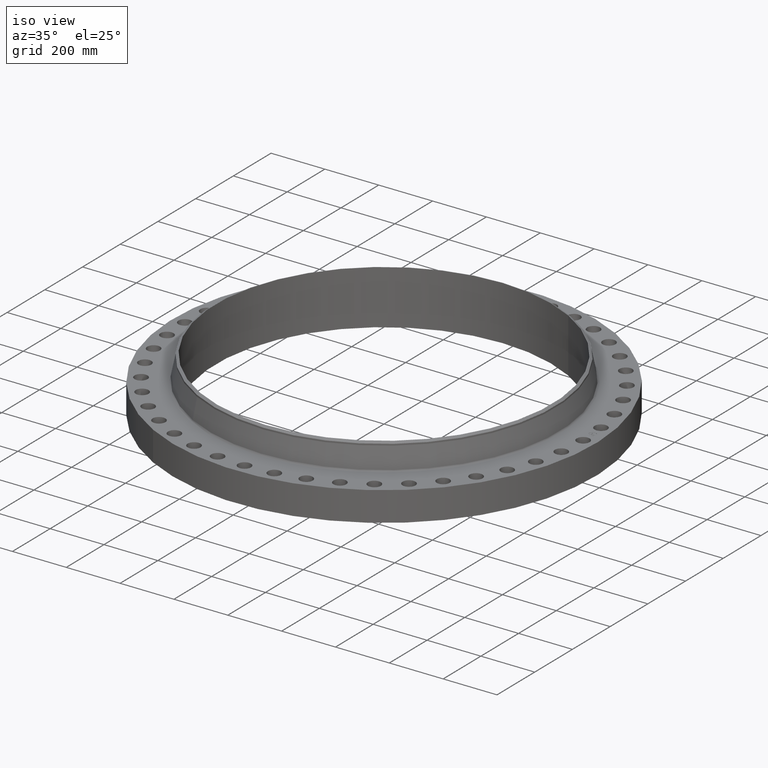
[diagram: clean part render]
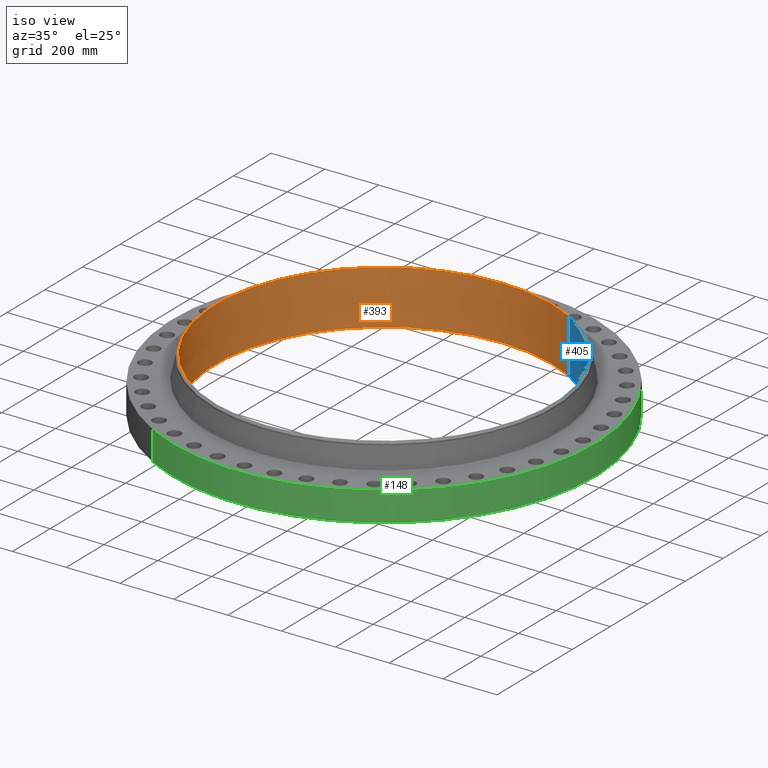
[diagram: same view with three faces highlighted in distinct colors, each labeled with its STEP entity id]
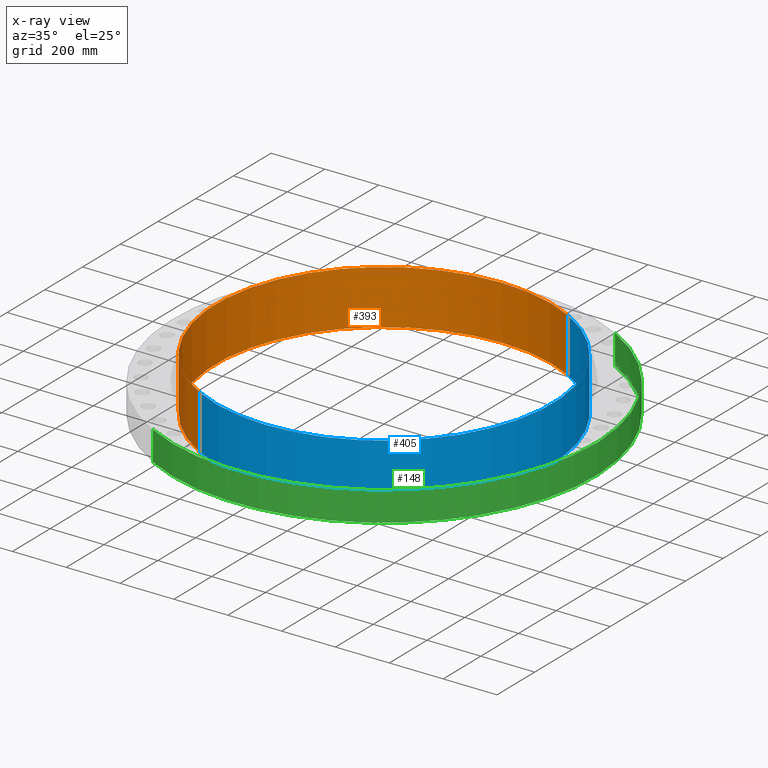
[diagram: x-ray of the same camera — body ghosted, the three highlighted faces saturated]
A machine part, iso view with three faces highlighted in distinct colors.
The next image is the same camera in x-ray (body ghosted, the three faces saturated) — at least one of them is partly hidden behind the body in this view.
Their STEP definitions:

[orange] entity #393 — the highlighted cylindrical surface (partial cylindrical patch) has radius 625.475 mm, axis along (0, 0, -1).
#346=AXIS2_PLACEMENT_3D('Circle Axis2P3D',#344,#345,$) ;
#366=AXIS2_PLACEMENT_3D('Cylinder Axis2P3D',#363,#364,#365) ;
#377=AXIS2_PLACEMENT_3D('Circle Axis2P3D',#375,#376,$) ;
#344=CARTESIAN_POINT('Axis2P3D Location',(-4.47585975282E-015,-2.79741234551E-015,7.94000000003)) ;
#348=CARTESIAN_POINT('Vertex',(-11.8058538882,-21.6104705866,7.94000000003)) ;
#350=CARTESIAN_POINT('Vertex',(11.8058538882,21.6104705866,7.94000000003)) ;
#363=CARTESIAN_POINT('Axis2P3D Location',(0.,0.,4.02000000002)) ;
#368=CARTESIAN_POINT('Line Origine',(-11.8058538882,-21.6104705866,3.97000000002)) ;
#372=CARTESIAN_POINT('Vertex',(-11.8058538882,-21.6104705866,-7.49706508597E-014)) ;
#375=CARTESIAN_POINT('Axis2P3D Location',(0.,0.,-7.49706508597E-014)) ;
#379=CARTESIAN_POINT('Vertex',(11.8058538882,21.6104705866,-7.49706508597E-014)) ;
#382=CARTESIAN_POINT('Line Origine',(11.8058538882,21.6104705866,3.97000000002)) ;
#345=DIRECTION('Axis2P3D Direction',(0.,-0.,-0.0393700787402)) ;
#364=DIRECTION('Axis2P3D Direction',(0.,0.,-0.0393700787402)) ;
#365=DIRECTION('Axis2P3D XDirection',(0.0188750212049,0.0345504945626,0.)) ;
#369=DIRECTION('Vector Direction',(0.,0.,-0.0393700787402)) ;
#376=DIRECTION('Axis2P3D Direction',(0.,0.,-0.0393700787402)) ;
#383=DIRECTION('Vector Direction',(0.,0.,-0.0393700787402)) ;
#370=VECTOR('Line Direction',#369,0.0393700787402) ;
#384=VECTOR('Line Direction',#383,0.0393700787402) ;
#388=ORIENTED_EDGE('',*,*,#374,.T.) ;
#389=ORIENTED_EDGE('',*,*,#381,.T.) ;
#390=ORIENTED_EDGE('',*,*,#386,.F.) ;
#391=ORIENTED_EDGE('',*,*,#352,.F.) ;
#393=ADVANCED_FACE('PartBody',(#392),#367,.F.) ;
#347=CIRCLE('generated circle',#346,24.6250000001) ;
#378=CIRCLE('generated circle',#377,24.6250000001) ;
#367=CYLINDRICAL_SURFACE('generated cylinder',#366,24.6250000001) ;
#352=EDGE_CURVE('',#349,#351,#347,.T.) ;
#374=EDGE_CURVE('',#349,#373,#371,.T.) ;
#381=EDGE_CURVE('',#373,#380,#378,.T.) ;
#386=EDGE_CURVE('',#351,#380,#385,.T.) ;
#387=EDGE_LOOP('',(#388,#389,#390,#391)) ;
#392=FACE_OUTER_BOUND('',#387,.T.) ;
#371=LINE('Line',#368,#370) ;
#385=LINE('Line',#382,#384) ;
#349=VERTEX_POINT('',#348) ;
#351=VERTEX_POINT('',#350) ;
#373=VERTEX_POINT('',#372) ;
#380=VERTEX_POINT('',#379) ;

[blue] entity #405 — the highlighted cylindrical surface (partial cylindrical patch) has radius 625.475 mm, axis along (0, 0, -1).
#355=AXIS2_PLACEMENT_3D('Circle Axis2P3D',#353,#354,$) ;
#366=AXIS2_PLACEMENT_3D('Cylinder Axis2P3D',#363,#364,#365) ;
#396=AXIS2_PLACEMENT_3D('Circle Axis2P3D',#394,#395,$) ;
#348=CARTESIAN_POINT('Vertex',(-11.8058538882,-21.6104705866,7.94000000003)) ;
#350=CARTESIAN_POINT('Vertex',(11.8058538882,21.6104705866,7.94000000003)) ;
#353=CARTESIAN_POINT('Axis2P3D Location',(1.1189649382E-014,5.59482469102E-016,7.94000000003)) ;
#363=CARTESIAN_POINT('Axis2P3D Location',(0.,0.,4.02000000002)) ;
#368=CARTESIAN_POINT('Line Origine',(-11.8058538882,-21.6104705866,3.97000000002)) ;
#372=CARTESIAN_POINT('Vertex',(-11.8058538882,-21.6104705866,-7.49706508597E-014)) ;
#379=CARTESIAN_POINT('Vertex',(11.8058538882,21.6104705866,-7.49706508597E-014)) ;
#382=CARTESIAN_POINT('Line Origine',(11.8058538882,21.6104705866,3.97000000002)) ;
#394=CARTESIAN_POINT('Axis2P3D Location',(0.,0.,-7.49706508597E-014)) ;
#354=DIRECTION('Axis2P3D Direction',(0.,-0.,-0.0393700787402)) ;
#364=DIRECTION('Axis2P3D Direction',(0.,0.,-0.0393700787402)) ;
#365=DIRECTION('Axis2P3D XDirection',(0.0188750212049,0.0345504945626,0.)) ;
#369=DIRECTION('Vector Direction',(0.,0.,-0.0393700787402)) ;
#383=DIRECTION('Vector Direction',(0.,0.,-0.0393700787402)) ;
#395=DIRECTION('Axis2P3D Direction',(0.,0.,-0.0393700787402)) ;
#370=VECTOR('Line Direction',#369,0.0393700787402) ;
#384=VECTOR('Line Direction',#383,0.0393700787402) ;
#400=ORIENTED_EDGE('',*,*,#386,.T.) ;
#401=ORIENTED_EDGE('',*,*,#398,.T.) ;
#402=ORIENTED_EDGE('',*,*,#374,.F.) ;
#403=ORIENTED_EDGE('',*,*,#357,.F.) ;
#405=ADVANCED_FACE('PartBody',(#404),#367,.F.) ;
#356=CIRCLE('generated circle',#355,24.6250000001) ;
#397=CIRCLE('generated circle',#396,24.6250000001) ;
#367=CYLINDRICAL_SURFACE('generated cylinder',#366,24.6250000001) ;
#357=EDGE_CURVE('',#351,#349,#356,.T.) ;
#374=EDGE_CURVE('',#349,#373,#371,.T.) ;
#386=EDGE_CURVE('',#351,#380,#385,.T.) ;
#398=EDGE_CURVE('',#380,#373,#397,.T.) ;
#399=EDGE_LOOP('',(#400,#401,#402,#403)) ;
#404=FACE_OUTER_BOUND('',#399,.T.) ;
#371=LINE('Line',#368,#370) ;
#385=LINE('Line',#382,#384) ;
#349=VERTEX_POINT('',#348) ;
#351=VERTEX_POINT('',#350) ;
#373=VERTEX_POINT('',#372) ;
#380=VERTEX_POINT('',#379) ;

[green] entity #148 — the highlighted cylindrical surface (partial cylindrical patch) has radius 784.225 mm, axis along (0, 0, -1).
#95=AXIS2_PLACEMENT_3D('Cylinder Axis2P3D',#92,#93,#94) ;
#134=AXIS2_PLACEMENT_3D('Circle Axis2P3D',#132,#133,$) ;
#139=AXIS2_PLACEMENT_3D('Circle Axis2P3D',#137,#138,$) ;
#92=CARTESIAN_POINT('Axis2P3D Location',(0.,0.,4.02000000002)) ;
#101=CARTESIAN_POINT('Vertex',(-14.8022635045,-27.0953615985,3.91637728372E-015)) ;
#103=CARTESIAN_POINT('Vertex',(14.8022635045,27.0953615985,3.91637728372E-015)) ;
#106=CARTESIAN_POINT('Line Origine',(-14.8022635045,-27.0953615985,2.16000000001)) ;
#110=CARTESIAN_POINT('Vertex',(-14.8022635045,-27.0953615985,4.32000000002)) ;
#117=CARTESIAN_POINT('Vertex',(14.8022635045,27.0953615985,4.32000000002)) ;
#120=CARTESIAN_POINT('Line Origine',(14.8022635045,27.0953615985,2.16000000001)) ;
#132=CARTESIAN_POINT('Axis2P3D Location',(0.,0.,3.91637728372E-015)) ;
#137=CARTESIAN_POINT('Axis2P3D Location',(0.,0.,4.32000000002)) ;
#93=DIRECTION('Axis2P3D Direction',(0.,0.,-0.0393700787402)) ;
#94=DIRECTION('Axis2P3D XDirection',(0.0188750212049,0.0345504945626,0.)) ;
#107=DIRECTION('Vector Direction',(0.,0.,-0.0393700787402)) ;
#121=DIRECTION('Vector Direction',(0.,0.,-0.0393700787402)) ;
#133=DIRECTION('Axis2P3D Direction',(0.,0.,-0.0393700787402)) ;
#138=DIRECTION('Axis2P3D Direction',(0.,0.,-0.0393700787402)) ;
#108=VECTOR('Line Direction',#107,0.0393700787402) ;
#122=VECTOR('Line Direction',#121,0.0393700787402) ;
#143=ORIENTED_EDGE('',*,*,#136,.F.) ;
#144=ORIENTED_EDGE('',*,*,#124,.T.) ;
#145=ORIENTED_EDGE('',*,*,#141,.T.) ;
#146=ORIENTED_EDGE('',*,*,#112,.F.) ;
#148=ADVANCED_FACE('PartBody',(#147),#96,.T.) ;
#135=CIRCLE('generated circle',#134,30.8750000001) ;
#140=CIRCLE('generated circle',#139,30.8750000001) ;
#96=CYLINDRICAL_SURFACE('generated cylinder',#95,30.8750000001) ;
#112=EDGE_CURVE('',#102,#111,#109,.F.) ;
#124=EDGE_CURVE('',#104,#118,#123,.F.) ;
#136=EDGE_CURVE('',#104,#102,#135,.T.) ;
#141=EDGE_CURVE('',#118,#111,#140,.T.) ;
#142=EDGE_LOOP('',(#143,#144,#145,#146)) ;
#147=FACE_OUTER_BOUND('',#142,.T.) ;
#109=LINE('Line',#106,#108) ;
#123=LINE('Line',#120,#122) ;
#102=VERTEX_POINT('',#101) ;
#104=VERTEX_POINT('',#103) ;
#111=VERTEX_POINT('',#110) ;
#118=VERTEX_POINT('',#117) ;